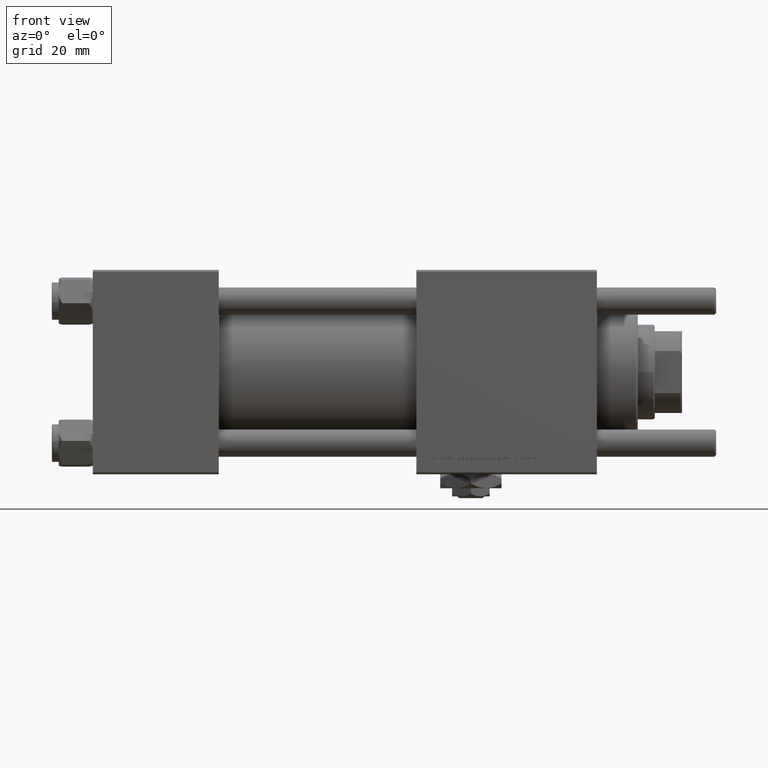
[diagram: clean part render]
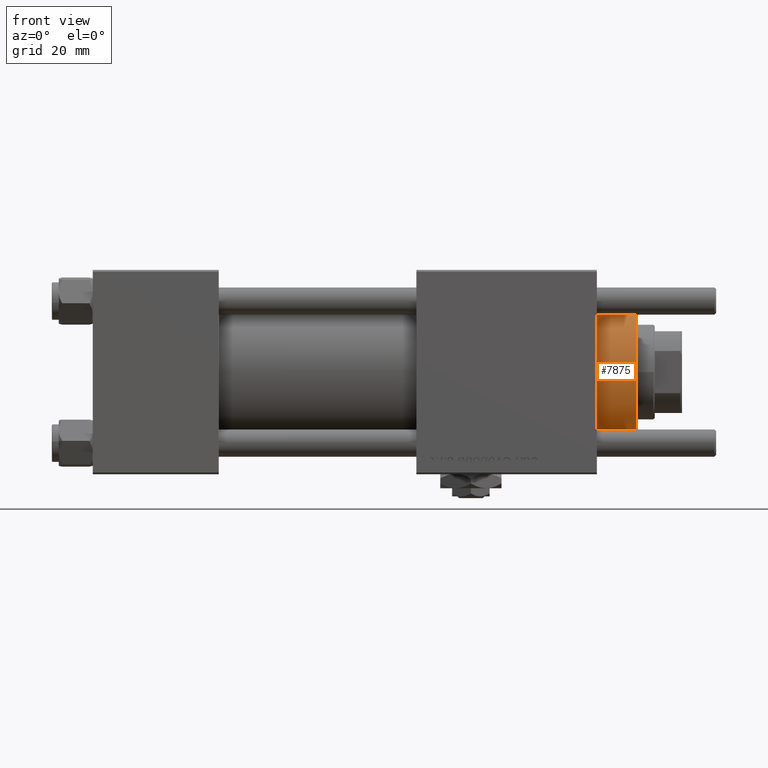
[diagram: same view with one face highlighted and labeled with its STEP entity id]
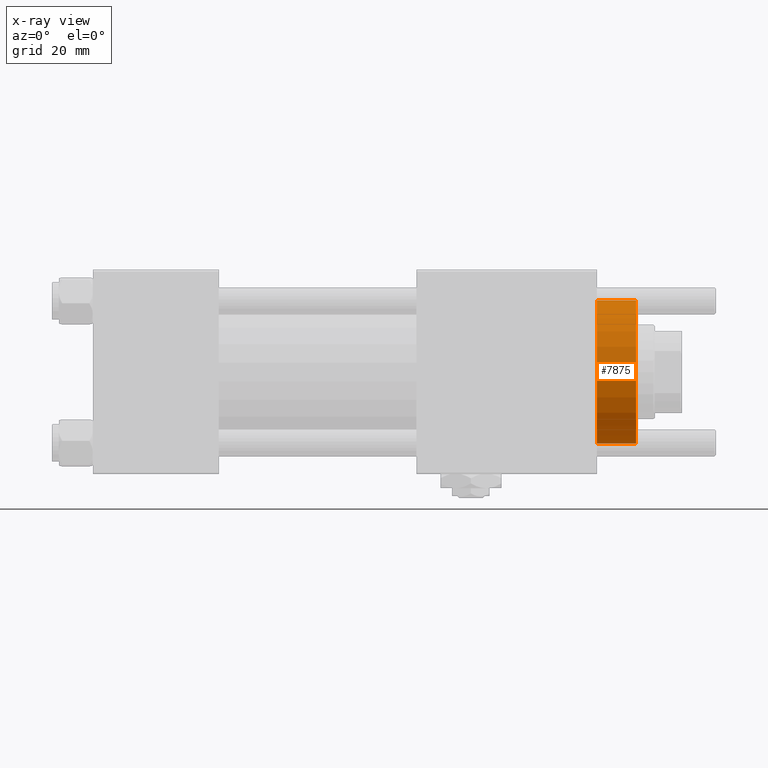
[diagram: x-ray of the same camera — body ghosted, the highlighted face saturated]
A machine part, front view. The second image highlights one B-rep face of the part: STEP entity #7875.
The next image is the same camera in x-ray: the body ghosted, the highlighted face saturated — about 1% of this face is hidden behind the body in this view.
In plain terms, the highlighted cylindrical surface (partial cylindrical patch) has radius 21 mm, axis along (-1, -0, 0).
Its self-contained STEP definition (entity closure, byte-faithful):
#1074 = DIRECTION ( 'NONE',  ( 0.000000000000000000, 0.000000000000000000, 1.000000000000000000 ) ) ;
#1689 = CARTESIAN_POINT ( 'NONE',  ( -21.00000000000000000, 0.000000000000000000, 40.70000000000000284 ) ) ;
#4742 = AXIS2_PLACEMENT_3D ( 'NONE', #19511, #23948, #55627 ) ;
#6744 = LINE ( 'NONE', #15641, #41504 ) ;
#7533 = ORIENTED_EDGE ( 'NONE', *, *, #36283, .T. ) ;
#7875 = ADVANCED_FACE ( 'NONE', ( #55049 ), #24236, .T. ) ;
#10340 = VERTEX_POINT ( 'NONE', #30591 ) ;
#11545 = AXIS2_PLACEMENT_3D ( 'NONE', #27388, #32413, #18821 ) ;
#15641 = CARTESIAN_POINT ( 'NONE',  ( 21.00000000000000000, 2.571758278209441661E-15, 40.70000000000000284 ) ) ;
#16234 = DIRECTION ( 'NONE',  ( -0.000000000000000000, -0.000000000000000000, -1.000000000000000000 ) ) ;
#17554 = CARTESIAN_POINT ( 'NONE',  ( 21.00000000000000000, 2.571758278209441661E-15, 40.19999999999998863 ) ) ;
#17995 = DIRECTION ( 'NONE',  ( 1.000000000000000000, 0.000000000000000000, 0.000000000000000000 ) ) ;
#18821 = DIRECTION ( 'NONE',  ( 1.000000000000000000, 0.000000000000000000, 0.000000000000000000 ) ) ;
#19511 = CARTESIAN_POINT ( 'NONE',  ( 0.000000000000000000, 0.000000000000000000, 40.70000000000000284 ) ) ;
#23948 = DIRECTION ( 'NONE',  ( -0.000000000000000000, -0.000000000000000000, -1.000000000000000000 ) ) ;
#24050 = EDGE_CURVE ( 'NONE', #47316, #31676, #34214, .T. ) ;
#24236 = CYLINDRICAL_SURFACE ( 'NONE', #4742, 21.00000000000000000 ) ;
#27388 = CARTESIAN_POINT ( 'NONE',  ( 0.000000000000000000, 0.000000000000000000, 40.19999999999998863 ) ) ;
#28298 = VERTEX_POINT ( 'NONE', #28586 ) ;
#28586 = CARTESIAN_POINT ( 'NONE',  ( 21.00000000000000000, 2.571758278209441661E-15, 28.69999999999999929 ) ) ;
#30591 = CARTESIAN_POINT ( 'NONE',  ( -21.00000000000000000, 0.000000000000000000, 28.69999999999999929 ) ) ;
#31676 = VERTEX_POINT ( 'NONE', #36264 ) ;
#32413 = DIRECTION ( 'NONE',  ( 0.000000000000000000, 0.000000000000000000, -1.000000000000000000 ) ) ;
#34214 = CIRCLE ( 'NONE', #11545, 21.00000000000000000 ) ;
#36264 = CARTESIAN_POINT ( 'NONE',  ( -21.00000000000000000, 0.000000000000000000, 40.19999999999998863 ) ) ;
#36283 = EDGE_CURVE ( 'NONE', #31676, #10340, #38373, .T. ) ;
#37281 = ORIENTED_EDGE ( 'NONE', *, *, #24050, .T. ) ;
#38373 = LINE ( 'NONE', #1689, #52428 ) ;
#39263 = EDGE_CURVE ( 'NONE', #10340, #28298, #51572, .T. ) ;
#41504 = VECTOR ( 'NONE', #16234, 1000.000000000000000 ) ;
#41543 = ORIENTED_EDGE ( 'NONE', *, *, #50101, .F. ) ;
#42816 = DIRECTION ( 'NONE',  ( -0.000000000000000000, -0.000000000000000000, -1.000000000000000000 ) ) ;
#44285 = EDGE_LOOP ( 'NONE', ( #41543, #37281, #7533, #45210 ) ) ;
#45210 = ORIENTED_EDGE ( 'NONE', *, *, #39263, .T. ) ;
#46081 = CARTESIAN_POINT ( 'NONE',  ( 0.000000000000000000, 0.000000000000000000, 28.69999999999999929 ) ) ;
#47316 = VERTEX_POINT ( 'NONE', #17554 ) ;
#50101 = EDGE_CURVE ( 'NONE', #47316, #28298, #6744, .T. ) ;
#51572 = CIRCLE ( 'NONE', #57226, 21.00000000000000000 ) ;
#52428 = VECTOR ( 'NONE', #42816, 1000.000000000000000 ) ;
#55049 = FACE_OUTER_BOUND ( 'NONE', #44285, .T. ) ;
#55627 = DIRECTION ( 'NONE',  ( -1.000000000000000000, 0.000000000000000000, 0.000000000000000000 ) ) ;
#57226 = AXIS2_PLACEMENT_3D ( 'NONE', #46081, #1074, #17995 ) ;